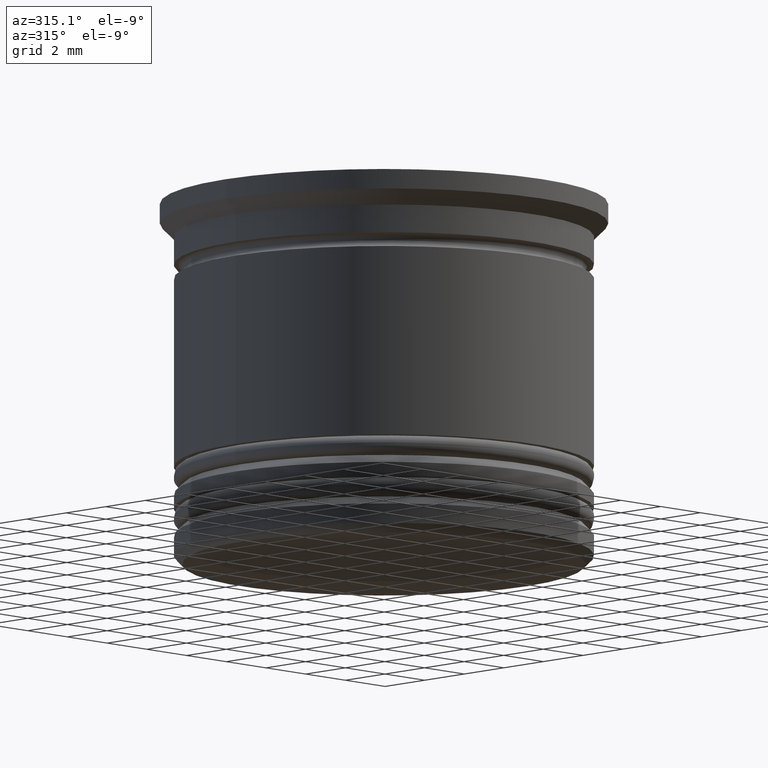
[diagram: clean part render]
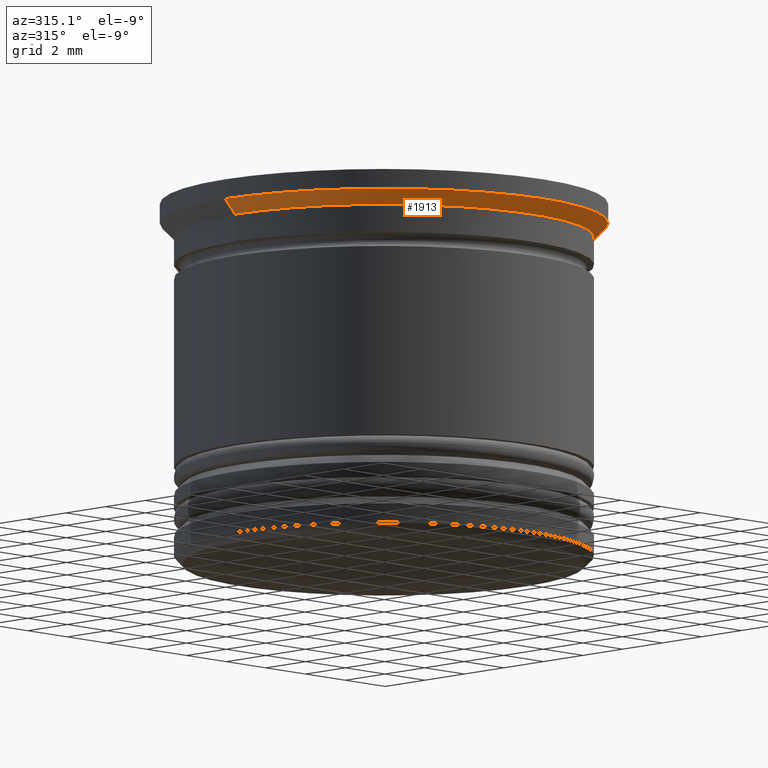
[diagram: same view with one face highlighted and labeled with its STEP entity id]
A machine part, auxiliary view. The second image highlights one B-rep face of the part: STEP entity #1913.
In plain terms, the highlighted conical surface has half-angle 45 deg.
Its self-contained STEP definition (entity closure, byte-faithful):
#14 = CARTESIAN_POINT ( 'NONE',  ( 7.499999999999998224, 0.000000000000000000, -1.199999999999999289 ) ) ;
#130 = EDGE_CURVE ( 'NONE', #1875, #922, #542, .T. ) ;
#187 = CIRCLE ( 'NONE', #1937, 8.000000000000000000 ) ;
#192 = LINE ( 'NONE', #1574, #1821 ) ;
#289 = DIRECTION ( 'NONE',  ( 1.000000000000000000, 0.000000000000000000, 0.000000000000000000 ) ) ;
#353 = ORIENTED_EDGE ( 'NONE', *, *, #530, .T. ) ;
#450 = FACE_OUTER_BOUND ( 'NONE', #1609, .T. ) ;
#485 = DIRECTION ( 'NONE',  ( -0.000000000000000000, -0.000000000000000000, 1.000000000000000000 ) ) ;
#530 = EDGE_CURVE ( 'NONE', #922, #1016, #192, .T. ) ;
#542 = CIRCLE ( 'NONE', #861, 7.499999999999998224 ) ;
#559 = DIRECTION ( 'NONE',  ( -0.7071067811865500152, 8.659560562354963673E-17, 0.7071067811865450192 ) ) ;
#608 = AXIS2_PLACEMENT_3D ( 'NONE', #617, #628, #289 ) ;
#617 = CARTESIAN_POINT ( 'NONE',  ( 0.000000000000000000, 0.000000000000000000, -0.7000000000000005107 ) ) ;
#628 = DIRECTION ( 'NONE',  ( -0.000000000000000000, -0.000000000000000000, 1.000000000000000000 ) ) ;
#785 = ORIENTED_EDGE ( 'NONE', *, *, #130, .T. ) ;
#814 = CARTESIAN_POINT ( 'NONE',  ( -7.499999999999998224, 9.184850993605145972E-16, -1.199999999999999289 ) ) ;
#826 = CARTESIAN_POINT ( 'NONE',  ( 8.000000000000000000, 0.000000000000000000, -0.7000000000000005107 ) ) ;
#861 = AXIS2_PLACEMENT_3D ( 'NONE', #1086, #485, #1097 ) ;
#898 = CARTESIAN_POINT ( 'NONE',  ( 0.000000000000000000, 0.000000000000000000, -0.7000000000000005107 ) ) ;
#922 = VERTEX_POINT ( 'NONE', #14 ) ;
#1001 = LINE ( 'NONE', #1162, #1631 ) ;
#1016 = VERTEX_POINT ( 'NONE', #826 ) ;
#1086 = CARTESIAN_POINT ( 'NONE',  ( 0.000000000000000000, 0.000000000000000000, -1.199999999999999289 ) ) ;
#1097 = DIRECTION ( 'NONE',  ( 1.000000000000000000, 0.000000000000000000, 0.000000000000000000 ) ) ;
#1137 = VERTEX_POINT ( 'NONE', #1594 ) ;
#1160 = EDGE_CURVE ( 'NONE', #1875, #1137, #1001, .T. ) ;
#1162 = CARTESIAN_POINT ( 'NONE',  ( -8.000000000000000000, 9.797174393178825657E-16, -0.7000000000000005107 ) ) ;
#1356 = EDGE_CURVE ( 'NONE', #1137, #1016, #187, .T. ) ;
#1370 = ORIENTED_EDGE ( 'NONE', *, *, #1160, .F. ) ;
#1384 = DIRECTION ( 'NONE',  ( 0.7071067811865500152, 0.000000000000000000, 0.7071067811865450192 ) ) ;
#1513 = DIRECTION ( 'NONE',  ( -1.000000000000000000, 0.000000000000000000, 0.000000000000000000 ) ) ;
#1574 = CARTESIAN_POINT ( 'NONE',  ( 8.000000000000000000, 0.000000000000000000, -0.7000000000000005107 ) ) ;
#1594 = CARTESIAN_POINT ( 'NONE',  ( -8.000000000000000000, 9.797174393178825657E-16, -0.7000000000000005107 ) ) ;
#1609 = EDGE_LOOP ( 'NONE', ( #1370, #785, #353, #1708 ) ) ;
#1631 = VECTOR ( 'NONE', #559, 1000.000000000000000 ) ;
#1659 = DIRECTION ( 'NONE',  ( -0.000000000000000000, -0.000000000000000000, 1.000000000000000000 ) ) ;
#1700 = CONICAL_SURFACE ( 'NONE', #608, 8.000000000000000000, 0.7853981633974518317 ) ;
#1708 = ORIENTED_EDGE ( 'NONE', *, *, #1356, .F. ) ;
#1821 = VECTOR ( 'NONE', #1384, 1000.000000000000000 ) ;
#1875 = VERTEX_POINT ( 'NONE', #814 ) ;
#1913 = ADVANCED_FACE ( 'NONE', ( #450 ), #1700, .T. ) ;
#1937 = AXIS2_PLACEMENT_3D ( 'NONE', #898, #1659, #1513 ) ;